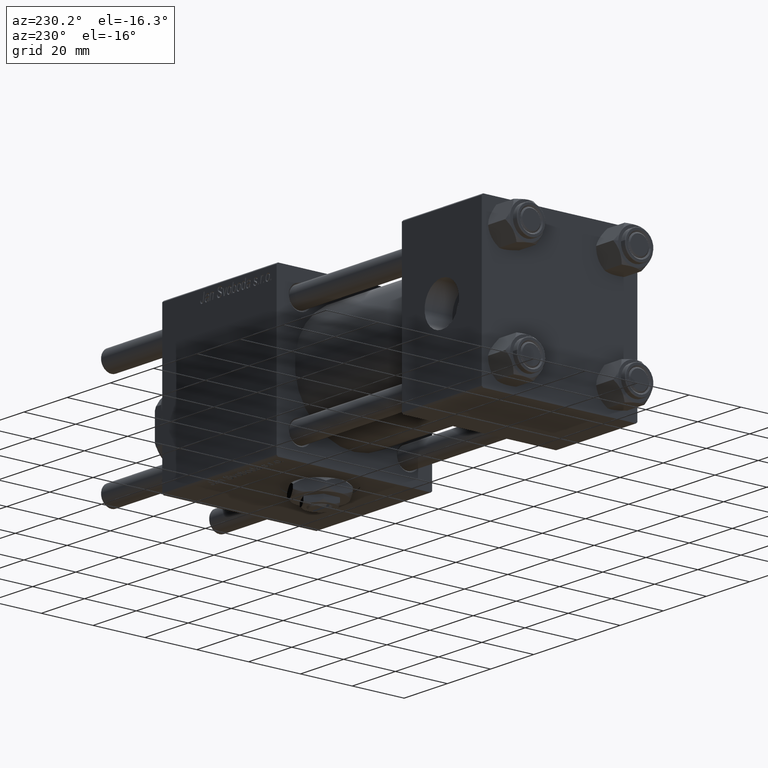
[diagram: clean part render]
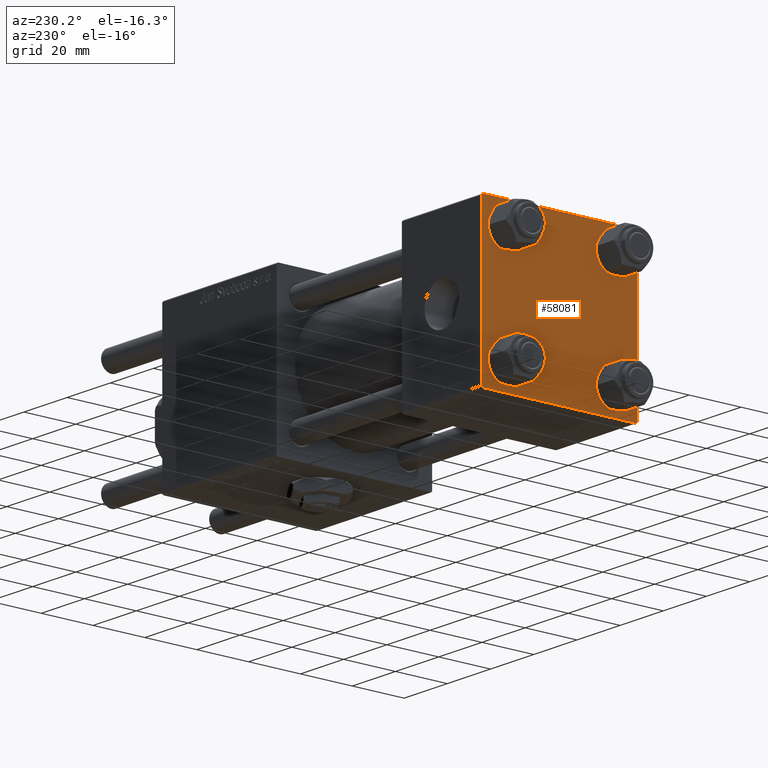
[diagram: same view with one face highlighted and labeled with its STEP entity id]
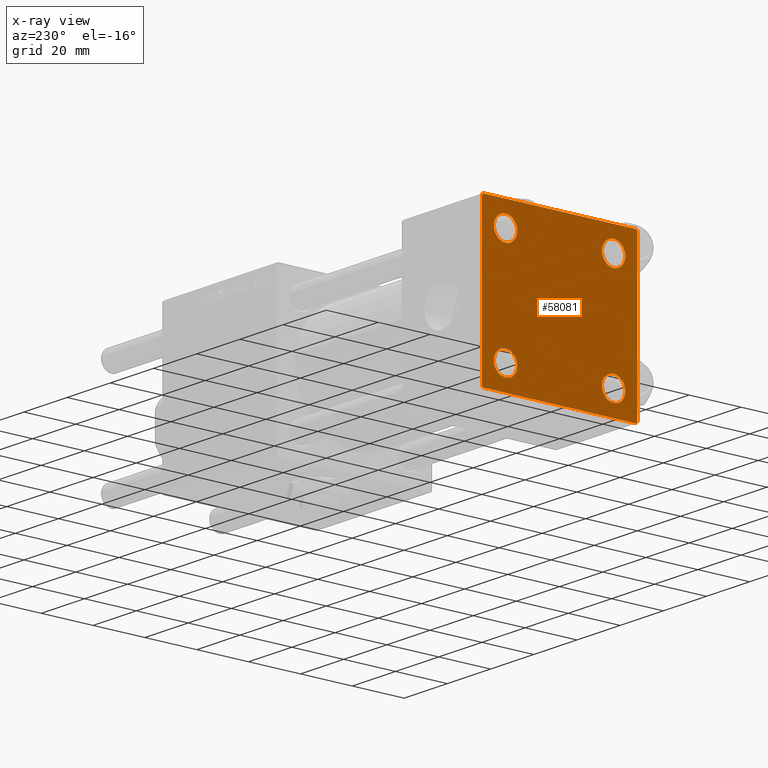
[diagram: x-ray of the same camera — body ghosted, the highlighted face saturated]
A machine part, auxiliary view. The second image highlights one B-rep face of the part: STEP entity #58081.
The next image is the same camera in x-ray: the body ghosted, the highlighted face saturated — about 0% of this face is hidden behind the body in this view.
In plain terms, the highlighted planar face has unit normal (-1, 0, 0).
Its self-contained STEP definition (entity closure, byte-faithful):
#139 = DIRECTION ( 'NONE',  ( 0.000000000000000000, -1.000000000000000000, -1.156482317317871725E-16 ) ) ;
#1543 = DIRECTION ( 'NONE',  ( 0.000000000000000000, 0.000000000000000000, 1.000000000000000000 ) ) ;
#1936 = DIRECTION ( 'NONE',  ( 0.000000000000000000, -0.7071067811865474617, 0.7071067811865474617 ) ) ;
#2413 = VECTOR ( 'NONE', #46589, 1000.000000000000114 ) ;
#2658 = EDGE_LOOP ( 'NONE', ( #52270, #50139 ) ) ;
#2922 = EDGE_CURVE ( 'NONE', #39830, #44413, #57018, .T. ) ;
#3260 = EDGE_CURVE ( 'NONE', #36323, #51822, #6490, .T. ) ;
#3595 = CARTESIAN_POINT ( 'NONE',  ( 0.000000000000000000, 29.74999999999957723, -29.75000000000040501 ) ) ;
#4579 = LINE ( 'NONE', #22746, #26263 ) ;
#4766 = LINE ( 'NONE', #3595, #18681 ) ;
#5005 = EDGE_LOOP ( 'NONE', ( #17273, #12682, #27219, #41274, #33213, #11247, #14338, #25195 ) ) ;
#5972 = AXIS2_PLACEMENT_3D ( 'NONE', #53232, #39517, #7084 ) ;
#6137 = EDGE_CURVE ( 'NONE', #51822, #44413, #56123, .T. ) ;
#6216 = DIRECTION ( 'NONE',  ( 0.000000000000000000, 0.000000000000000000, 1.000000000000000000 ) ) ;
#6219 = FACE_BOUND ( 'NONE', #2658, .T. ) ;
#6490 = LINE ( 'NONE', #24341, #40756 ) ;
#6617 = ORIENTED_EDGE ( 'NONE', *, *, #58796, .T. ) ;
#6965 = LINE ( 'NONE', #32868, #2413 ) ;
#7084 = DIRECTION ( 'NONE',  ( 0.000000000000000000, 0.000000000000000000, 1.000000000000000000 ) ) ;
#7103 = FACE_OUTER_BOUND ( 'NONE', #5005, .T. ) ;
#7388 = DIRECTION ( 'NONE',  ( -0.000000000000000000, 0.000000000000000000, 1.000000000000000000 ) ) ;
#8286 = AXIS2_PLACEMENT_3D ( 'NONE', #56298, #47079, #55712 ) ;
#8998 = VECTOR ( 'NONE', #42427, 1000.000000000000114 ) ;
#9198 = CARTESIAN_POINT ( 'NONE',  ( 0.000000000000000000, 20.84999999999999787, -25.35000000000001918 ) ) ;
#10491 = EDGE_CURVE ( 'NONE', #46038, #37705, #47579, .T. ) ;
#11181 = CARTESIAN_POINT ( 'NONE',  ( 0.000000000000000000, -20.84999999999999076, -25.35000000000002274 ) ) ;
#11247 = ORIENTED_EDGE ( 'NONE', *, *, #55721, .T. ) ;
#11573 = PLANE ( 'NONE',  #55714 ) ;
#11645 = DIRECTION ( 'NONE',  ( 0.000000000000000000, 0.000000000000000000, -1.000000000000000000 ) ) ;
#12238 = CIRCLE ( 'NONE', #36925, 4.500000000000017764 ) ;
#12682 = ORIENTED_EDGE ( 'NONE', *, *, #58815, .T. ) ;
#13514 = DIRECTION ( 'NONE',  ( 0.000000000000000000, 0.000000000000000000, -1.000000000000000000 ) ) ;
#13516 = EDGE_CURVE ( 'NONE', #35165, #17699, #4579, .T. ) ;
#14312 = ORIENTED_EDGE ( 'NONE', *, *, #15912, .T. ) ;
#14338 = ORIENTED_EDGE ( 'NONE', *, *, #13516, .F. ) ;
#15324 = CARTESIAN_POINT ( 'NONE',  ( 0.000000000000000000, -29.75000000000001066, -29.75000000000001066 ) ) ;
#15912 = EDGE_CURVE ( 'NONE', #48155, #50937, #16825, .T. ) ;
#16248 = CARTESIAN_POINT ( 'NONE',  ( 0.000000000000000000, -29.49999999999998579, 29.99999999999999289 ) ) ;
#16825 = CIRCLE ( 'NONE', #8286, 4.500000000000017764 ) ;
#17273 = ORIENTED_EDGE ( 'NONE', *, *, #29930, .T. ) ;
#17575 = CARTESIAN_POINT ( 'NONE',  ( 0.000000000000000000, 20.84999999999999787, -20.85000000000000142 ) ) ;
#17624 = VERTEX_POINT ( 'NONE', #39826 ) ;
#17699 = VERTEX_POINT ( 'NONE', #16248 ) ;
#18681 = VECTOR ( 'NONE', #40495, 999.9999999999998863 ) ;
#19150 = EDGE_CURVE ( 'NONE', #37705, #46038, #12238, .T. ) ;
#19909 = CARTESIAN_POINT ( 'NONE',  ( 0.000000000000000000, -20.84999999999999076, -16.34999999999998721 ) ) ;
#20906 = AXIS2_PLACEMENT_3D ( 'NONE', #34345, #34638, #43884 ) ;
#21081 = CARTESIAN_POINT ( 'NONE',  ( 0.000000000000000000, 20.84999999999999787, 20.85000000000000142 ) ) ;
#21851 = CARTESIAN_POINT ( 'NONE',  ( 0.000000000000000000, -30.00000000000000000, 29.99999999999999289 ) ) ;
#22201 = EDGE_LOOP ( 'NONE', ( #34961, #34493 ) ) ;
#22300 = ORIENTED_EDGE ( 'NONE', *, *, #10491, .T. ) ;
#22653 = VECTOR ( 'NONE', #13514, 1000.000000000000000 ) ;
#22746 = CARTESIAN_POINT ( 'NONE',  ( 0.000000000000000000, 29.99999999999999289, 30.00000000000000000 ) ) ;
#23361 = CARTESIAN_POINT ( 'NONE',  ( 0.000000000000000000, 20.84999999999999787, -16.34999999999998366 ) ) ;
#24256 = CARTESIAN_POINT ( 'NONE',  ( 0.000000000000000000, 29.74999999999999645, 29.74999999999999645 ) ) ;
#24341 = CARTESIAN_POINT ( 'NONE',  ( 0.000000000000000000, 29.99999999999999289, -30.00000000000000000 ) ) ;
#24671 = DIRECTION ( 'NONE',  ( 1.000000000000000000, -0.000000000000000000, 0.000000000000000000 ) ) ;
#25195 = ORIENTED_EDGE ( 'NONE', *, *, #53245, .T. ) ;
#25251 = DIRECTION ( 'NONE',  ( -1.000000000000000000, 0.000000000000000000, -0.000000000000000000 ) ) ;
#25565 = CARTESIAN_POINT ( 'NONE',  ( 0.000000000000000000, -29.50000000000000000, -30.00000000000000711 ) ) ;
#25832 = VERTEX_POINT ( 'NONE', #55895 ) ;
#25858 = ORIENTED_EDGE ( 'NONE', *, *, #19150, .T. ) ;
#26263 = VECTOR ( 'NONE', #139, 1000.000000000000000 ) ;
#26508 = CARTESIAN_POINT ( 'NONE',  ( 0.000000000000000000, -30.00000000000000000, 29.49999999999999289 ) ) ;
#27219 = ORIENTED_EDGE ( 'NONE', *, *, #3260, .T. ) ;
#28746 = LINE ( 'NONE', #24256, #8998 ) ;
#29614 = CARTESIAN_POINT ( 'NONE',  ( 0.000000000000000000, -20.84999999999999076, 25.35000000000002274 ) ) ;
#29878 = CIRCLE ( 'NONE', #5972, 4.500000000000017764 ) ;
#29930 = EDGE_CURVE ( 'NONE', #25832, #56387, #52458, .T. ) ;
#30025 = FACE_BOUND ( 'NONE', #22201, .T. ) ;
#31829 = CIRCLE ( 'NONE', #35639, 4.500000000000017764 ) ;
#32077 = CARTESIAN_POINT ( 'NONE',  ( 0.000000000000000000, 29.49999999999997868, -30.00000000000000000 ) ) ;
#32682 = VERTEX_POINT ( 'NONE', #11181 ) ;
#32868 = CARTESIAN_POINT ( 'NONE',  ( -0.000000000000000000, -29.74999999999999645, 29.74999999999999645 ) ) ;
#33213 = ORIENTED_EDGE ( 'NONE', *, *, #2922, .F. ) ;
#33277 = VERTEX_POINT ( 'NONE', #19909 ) ;
#33651 = CARTESIAN_POINT ( 'NONE',  ( 0.000000000000000000, 29.49999999999999289, 30.00000000000000000 ) ) ;
#33663 = CARTESIAN_POINT ( 'NONE',  ( 0.000000000000000000, -20.84999999999999076, 20.85000000000000497 ) ) ;
#34345 = CARTESIAN_POINT ( 'NONE',  ( 0.000000000000000000, -20.84999999999999076, 20.85000000000000497 ) ) ;
#34493 = ORIENTED_EDGE ( 'NONE', *, *, #49749, .T. ) ;
#34638 = DIRECTION ( 'NONE',  ( 1.000000000000000000, -0.000000000000000000, 0.000000000000000000 ) ) ;
#34961 = ORIENTED_EDGE ( 'NONE', *, *, #41597, .T. ) ;
#35165 = VERTEX_POINT ( 'NONE', #33651 ) ;
#35458 = CIRCLE ( 'NONE', #58308, 4.500000000000017764 ) ;
#35587 = DIRECTION ( 'NONE',  ( 0.000000000000000000, 0.000000000000000000, 1.000000000000000000 ) ) ;
#35639 = AXIS2_PLACEMENT_3D ( 'NONE', #21081, #24671, #6216 ) ;
#36323 = VERTEX_POINT ( 'NONE', #32077 ) ;
#36620 = EDGE_LOOP ( 'NONE', ( #6617, #14312 ) ) ;
#36925 = AXIS2_PLACEMENT_3D ( 'NONE', #33663, #47096, #1543 ) ;
#37365 = EDGE_CURVE ( 'NONE', #32682, #33277, #35458, .T. ) ;
#37457 = EDGE_CURVE ( 'NONE', #33277, #32682, #49733, .T. ) ;
#37705 = VERTEX_POINT ( 'NONE', #29614 ) ;
#38633 = DIRECTION ( 'NONE',  ( 0.000000000000000000, -1.000000000000000000, -1.156482317317871725E-16 ) ) ;
#39517 = DIRECTION ( 'NONE',  ( 1.000000000000000000, -0.000000000000000000, 0.000000000000000000 ) ) ;
#39826 = CARTESIAN_POINT ( 'NONE',  ( 0.000000000000000000, 20.84999999999999787, 25.35000000000001918 ) ) ;
#39830 = VERTEX_POINT ( 'NONE', #26508 ) ;
#39839 = CARTESIAN_POINT ( 'NONE',  ( 0.000000000000000000, 29.99999999999999289, -29.50000000000000000 ) ) ;
#40495 = DIRECTION ( 'NONE',  ( -0.000000000000000000, -0.7071067811865574537, -0.7071067811865376918 ) ) ;
#40756 = VECTOR ( 'NONE', #38633, 1000.000000000000000 ) ;
#41017 = CARTESIAN_POINT ( 'NONE',  ( 0.000000000000000000, -30.00000000000000000, -29.50000000000001776 ) ) ;
#41274 = ORIENTED_EDGE ( 'NONE', *, *, #6137, .T. ) ;
#41597 = EDGE_CURVE ( 'NONE', #17624, #56084, #29878, .T. ) ;
#42427 = DIRECTION ( 'NONE',  ( 0.000000000000000000, 0.7071067811865474617, -0.7071067811865474617 ) ) ;
#43884 = DIRECTION ( 'NONE',  ( 0.000000000000000000, 0.000000000000000000, 1.000000000000000000 ) ) ;
#43947 = DIRECTION ( 'NONE',  ( 0.000000000000000000, 0.000000000000000000, 1.000000000000000000 ) ) ;
#44379 = DIRECTION ( 'NONE',  ( 0.000000000000000000, 0.000000000000000000, 1.000000000000000000 ) ) ;
#44383 = CARTESIAN_POINT ( 'NONE',  ( 0.000000000000000000, 29.99999999999999289, 30.00000000000000000 ) ) ;
#44413 = VERTEX_POINT ( 'NONE', #41017 ) ;
#45127 = DIRECTION ( 'NONE',  ( 1.000000000000000000, -0.000000000000000000, 0.000000000000000000 ) ) ;
#46038 = VERTEX_POINT ( 'NONE', #49974 ) ;
#46589 = DIRECTION ( 'NONE',  ( -0.000000000000000000, 0.7071067811865474617, 0.7071067811865474617 ) ) ;
#47079 = DIRECTION ( 'NONE',  ( 1.000000000000000000, -0.000000000000000000, 0.000000000000000000 ) ) ;
#47096 = DIRECTION ( 'NONE',  ( 1.000000000000000000, -0.000000000000000000, 0.000000000000000000 ) ) ;
#47220 = CIRCLE ( 'NONE', #50062, 4.500000000000017764 ) ;
#47579 = CIRCLE ( 'NONE', #20906, 4.500000000000017764 ) ;
#47621 = FACE_BOUND ( 'NONE', #53307, .T. ) ;
#47907 = CARTESIAN_POINT ( 'NONE',  ( 0.000000000000000000, 0.000000000000000000, 0.000000000000000000 ) ) ;
#48135 = DIRECTION ( 'NONE',  ( 1.000000000000000000, -0.000000000000000000, 0.000000000000000000 ) ) ;
#48155 = VERTEX_POINT ( 'NONE', #9198 ) ;
#49268 = VECTOR ( 'NONE', #1936, 1000.000000000000114 ) ;
#49455 = DIRECTION ( 'NONE',  ( 1.000000000000000000, -0.000000000000000000, 0.000000000000000000 ) ) ;
#49733 = CIRCLE ( 'NONE', #53551, 4.500000000000017764 ) ;
#49749 = EDGE_CURVE ( 'NONE', #56084, #17624, #31829, .T. ) ;
#49901 = CARTESIAN_POINT ( 'NONE',  ( 0.000000000000000000, -20.84999999999999076, -20.85000000000000497 ) ) ;
#49974 = CARTESIAN_POINT ( 'NONE',  ( 0.000000000000000000, -20.84999999999999076, 16.34999999999998721 ) ) ;
#50062 = AXIS2_PLACEMENT_3D ( 'NONE', #17575, #49455, #44379 ) ;
#50139 = ORIENTED_EDGE ( 'NONE', *, *, #37365, .T. ) ;
#50468 = VECTOR ( 'NONE', #11645, 1000.000000000000000 ) ;
#50937 = VERTEX_POINT ( 'NONE', #23361 ) ;
#51822 = VERTEX_POINT ( 'NONE', #25565 ) ;
#52270 = ORIENTED_EDGE ( 'NONE', *, *, #37457, .T. ) ;
#52458 = LINE ( 'NONE', #44383, #50468 ) ;
#53032 = CARTESIAN_POINT ( 'NONE',  ( 0.000000000000000000, 20.84999999999999787, 16.34999999999998366 ) ) ;
#53232 = CARTESIAN_POINT ( 'NONE',  ( 0.000000000000000000, 20.84999999999999787, 20.85000000000000142 ) ) ;
#53245 = EDGE_CURVE ( 'NONE', #35165, #25832, #28746, .T. ) ;
#53307 = EDGE_LOOP ( 'NONE', ( #25858, #22300 ) ) ;
#53478 = CARTESIAN_POINT ( 'NONE',  ( 0.000000000000000000, -20.84999999999999076, -20.85000000000000497 ) ) ;
#53551 = AXIS2_PLACEMENT_3D ( 'NONE', #49901, #45127, #35587 ) ;
#55712 = DIRECTION ( 'NONE',  ( 0.000000000000000000, 0.000000000000000000, 1.000000000000000000 ) ) ;
#55714 = AXIS2_PLACEMENT_3D ( 'NONE', #47907, #25251, #7388 ) ;
#55721 = EDGE_CURVE ( 'NONE', #39830, #17699, #6965, .T. ) ;
#55895 = CARTESIAN_POINT ( 'NONE',  ( 0.000000000000000000, 29.99999999999999289, 29.50000000000000000 ) ) ;
#56084 = VERTEX_POINT ( 'NONE', #53032 ) ;
#56123 = LINE ( 'NONE', #15324, #49268 ) ;
#56298 = CARTESIAN_POINT ( 'NONE',  ( 0.000000000000000000, 20.84999999999999787, -20.85000000000000142 ) ) ;
#56387 = VERTEX_POINT ( 'NONE', #39839 ) ;
#56544 = FACE_BOUND ( 'NONE', #36620, .T. ) ;
#57018 = LINE ( 'NONE', #21851, #22653 ) ;
#58081 = ADVANCED_FACE ( 'NONE', ( #47621, #6219, #56544, #30025, #7103 ), #11573, .T. ) ;
#58308 = AXIS2_PLACEMENT_3D ( 'NONE', #53478, #48135, #43947 ) ;
#58796 = EDGE_CURVE ( 'NONE', #50937, #48155, #47220, .T. ) ;
#58815 = EDGE_CURVE ( 'NONE', #56387, #36323, #4766, .T. ) ;